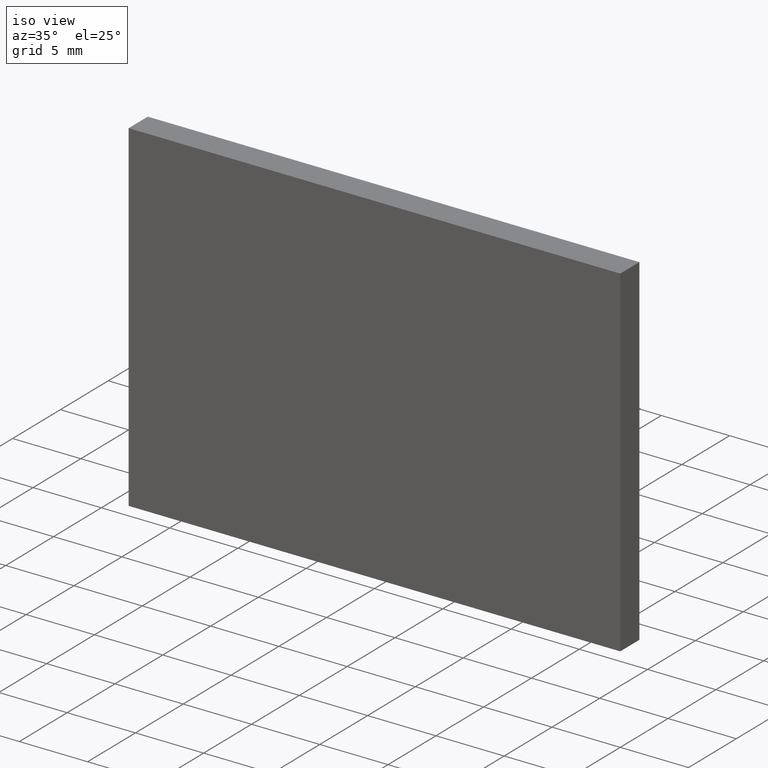
[diagram: clean part render]
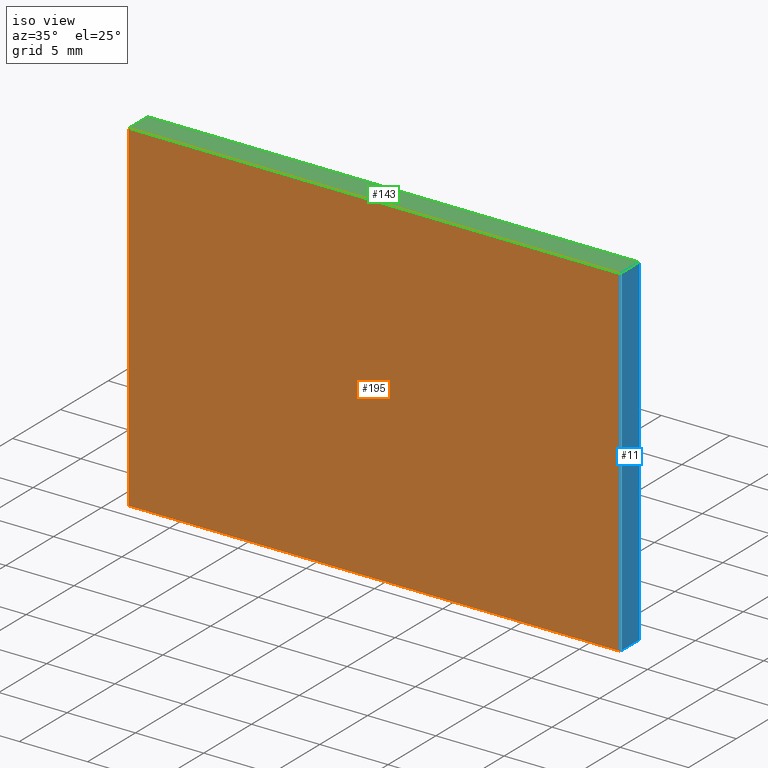
[diagram: same view with three faces highlighted in distinct colors, each labeled with its STEP entity id]
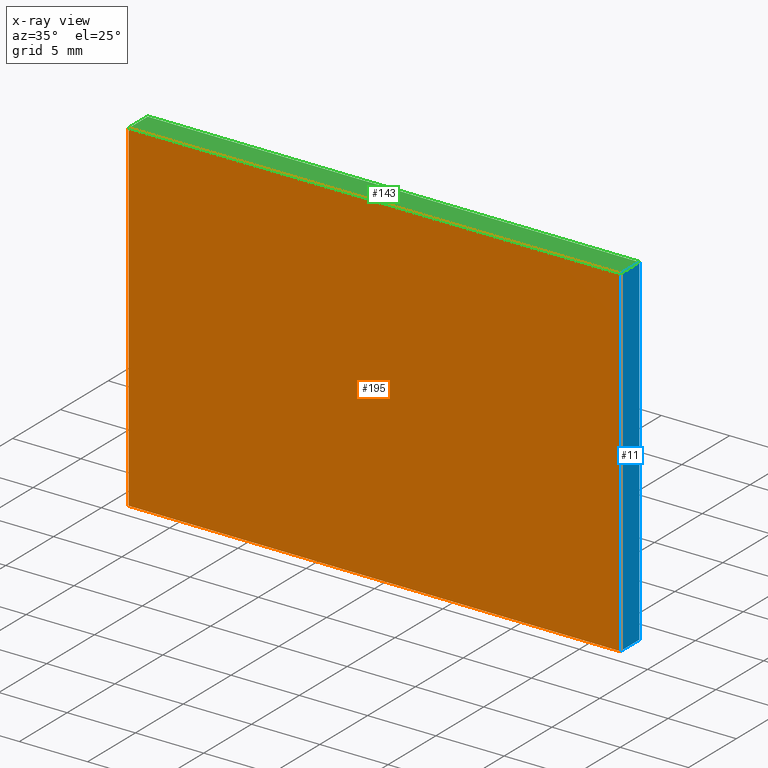
[diagram: x-ray of the same camera — body ghosted, the three highlighted faces saturated]
A machine part, iso view with three faces highlighted in distinct colors.
The next image is the same camera in x-ray (body ghosted, the three faces saturated) — at least one of them is partly hidden behind the body in this view.
Their STEP definitions:

[orange] entity #195 — the highlighted planar face has unit normal (0, 1, 0).
#1 = VECTOR ( 'NONE', #176, 1000.000000000000000 ) ;
#5 = AXIS2_PLACEMENT_3D ( 'NONE', #34, #13, #134 ) ;
#10 = CARTESIAN_POINT ( 'NONE',  ( 17.99999999999999600, 0.0000000000000000000, -12.49999999999999800 ) ) ;
#13 = DIRECTION ( 'NONE',  ( 0.0000000000000000000, 1.000000000000000000, 0.0000000000000000000 ) ) ;
#15 = FACE_OUTER_BOUND ( 'NONE', #17, .T. ) ;
#17 = EDGE_LOOP ( 'NONE', ( #97, #35, #65, #167 ) ) ;
#20 = VERTEX_POINT ( 'NONE', #130 ) ;
#32 = LINE ( 'NONE', #99, #1 ) ;
#34 = CARTESIAN_POINT ( 'NONE',  ( 0.0000000000000000000, 0.0000000000000000000, 0.0000000000000000000 ) ) ;
#35 = ORIENTED_EDGE ( 'NONE', *, *, #121, .F. ) ;
#39 = LINE ( 'NONE', #144, #78 ) ;
#48 = EDGE_CURVE ( 'NONE', #135, #74, #32, .T. ) ;
#49 = EDGE_CURVE ( 'NONE', #74, #20, #107, .T. ) ;
#55 = CARTESIAN_POINT ( 'NONE',  ( 18.00000000000000400, 0.0000000000000000000, 12.50000000000000200 ) ) ;
#56 = DIRECTION ( 'NONE',  ( -1.000000000000000000, -0.0000000000000000000, -0.0000000000000000000 ) ) ;
#58 = EDGE_CURVE ( 'NONE', #20, #60, #39, .T. ) ;
#60 = VERTEX_POINT ( 'NONE', #112 ) ;
#65 = ORIENTED_EDGE ( 'NONE', *, *, #58, .F. ) ;
#74 = VERTEX_POINT ( 'NONE', #10 ) ;
#78 = VECTOR ( 'NONE', #98, 1000.000000000000000 ) ;
#97 = ORIENTED_EDGE ( 'NONE', *, *, #48, .F. ) ;
#98 = DIRECTION ( 'NONE',  ( 0.0000000000000000000, 0.0000000000000000000, 1.000000000000000000 ) ) ;
#99 = CARTESIAN_POINT ( 'NONE',  ( 17.99999999999999600, 0.0000000000000000000, -12.49999999999999800 ) ) ;
#107 = LINE ( 'NONE', #196, #152 ) ;
#112 = CARTESIAN_POINT ( 'NONE',  ( -18.00000000000000400, 0.0000000000000000000, 12.50000000000000200 ) ) ;
#113 = PLANE ( 'NONE',  #5 ) ;
#120 = VECTOR ( 'NONE', #140, 1000.000000000000000 ) ;
#121 = EDGE_CURVE ( 'NONE', #60, #135, #163, .T. ) ;
#130 = CARTESIAN_POINT ( 'NONE',  ( -18.00000000000000400, 0.0000000000000000000, -12.49999999999999800 ) ) ;
#134 = DIRECTION ( 'NONE',  ( 0.0000000000000000000, -0.0000000000000000000, 1.000000000000000000 ) ) ;
#135 = VERTEX_POINT ( 'NONE', #55 ) ;
#140 = DIRECTION ( 'NONE',  ( 1.000000000000000000, 0.0000000000000000000, 0.0000000000000000000 ) ) ;
#144 = CARTESIAN_POINT ( 'NONE',  ( -18.00000000000000400, 0.0000000000000000000, -12.49999999999999800 ) ) ;
#152 = VECTOR ( 'NONE', #56, 1000.000000000000000 ) ;
#155 = CARTESIAN_POINT ( 'NONE',  ( -18.00000000000000400, 0.0000000000000000000, 12.50000000000000200 ) ) ;
#163 = LINE ( 'NONE', #155, #120 ) ;
#167 = ORIENTED_EDGE ( 'NONE', *, *, #49, .F. ) ;
#176 = DIRECTION ( 'NONE',  ( -2.775557561562891400E-016, -0.0000000000000000000, -1.000000000000000000 ) ) ;
#195 = ADVANCED_FACE ( 'NONE', ( #15 ), #113, .F. ) ;
#196 = CARTESIAN_POINT ( 'NONE',  ( -18.00000000000000400, 0.0000000000000000000, -12.49999999999999800 ) ) ;

[blue] entity #11 — the highlighted planar face has unit normal (-1, 0, 0).
#1 = VECTOR ( 'NONE', #176, 1000.000000000000000 ) ;
#7 = ORIENTED_EDGE ( 'NONE', *, *, #48, .T. ) ;
#8 = VECTOR ( 'NONE', #115, 1000.000000000000000 ) ;
#10 = CARTESIAN_POINT ( 'NONE',  ( 17.99999999999999600, 0.0000000000000000000, -12.49999999999999800 ) ) ;
#11 = ADVANCED_FACE ( 'NONE', ( #30 ), #172, .F. ) ;
#24 = VECTOR ( 'NONE', #193, 1000.000000000000000 ) ;
#25 = DIRECTION ( 'NONE',  ( 2.775557561562891400E-016, 0.0000000000000000000, 1.000000000000000000 ) ) ;
#30 = FACE_OUTER_BOUND ( 'NONE', #31, .T. ) ;
#31 = EDGE_LOOP ( 'NONE', ( #7, #93, #103, #180 ) ) ;
#32 = LINE ( 'NONE', #99, #1 ) ;
#36 = CARTESIAN_POINT ( 'NONE',  ( 18.00000000000000400, 2.000000000000000000, 12.50000000000000200 ) ) ;
#38 = CARTESIAN_POINT ( 'NONE',  ( 17.99999999999999600, 2.000000000000000000, -12.49999999999999800 ) ) ;
#40 = DIRECTION ( 'NONE',  ( -1.000000000000000000, 0.0000000000000000000, 2.775557561562891400E-016 ) ) ;
#48 = EDGE_CURVE ( 'NONE', #135, #74, #32, .T. ) ;
#53 = VERTEX_POINT ( 'NONE', #128 ) ;
#55 = CARTESIAN_POINT ( 'NONE',  ( 18.00000000000000400, 0.0000000000000000000, 12.50000000000000200 ) ) ;
#66 = EDGE_CURVE ( 'NONE', #104, #53, #77, .T. ) ;
#70 = DIRECTION ( 'NONE',  ( -2.775557561562891400E-016, -0.0000000000000000000, -1.000000000000000000 ) ) ;
#72 = AXIS2_PLACEMENT_3D ( 'NONE', #38, #40, #25 ) ;
#74 = VERTEX_POINT ( 'NONE', #10 ) ;
#77 = LINE ( 'NONE', #82, #114 ) ;
#81 = EDGE_CURVE ( 'NONE', #53, #74, #137, .T. ) ;
#82 = CARTESIAN_POINT ( 'NONE',  ( 17.99999999999999600, 2.000000000000000000, -12.49999999999999800 ) ) ;
#93 = ORIENTED_EDGE ( 'NONE', *, *, #81, .F. ) ;
#99 = CARTESIAN_POINT ( 'NONE',  ( 17.99999999999999600, 0.0000000000000000000, -12.49999999999999800 ) ) ;
#103 = ORIENTED_EDGE ( 'NONE', *, *, #66, .F. ) ;
#104 = VERTEX_POINT ( 'NONE', #36 ) ;
#114 = VECTOR ( 'NONE', #70, 1000.000000000000000 ) ;
#115 = DIRECTION ( 'NONE',  ( -0.0000000000000000000, -1.000000000000000000, -0.0000000000000000000 ) ) ;
#128 = CARTESIAN_POINT ( 'NONE',  ( 17.99999999999999600, 2.000000000000000000, -12.49999999999999800 ) ) ;
#135 = VERTEX_POINT ( 'NONE', #55 ) ;
#137 = LINE ( 'NONE', #142, #24 ) ;
#142 = CARTESIAN_POINT ( 'NONE',  ( 17.99999999999999600, 2.000000000000000000, -12.49999999999999800 ) ) ;
#146 = EDGE_CURVE ( 'NONE', #104, #135, #168, .T. ) ;
#168 = LINE ( 'NONE', #197, #8 ) ;
#172 = PLANE ( 'NONE',  #72 ) ;
#176 = DIRECTION ( 'NONE',  ( -2.775557561562891400E-016, -0.0000000000000000000, -1.000000000000000000 ) ) ;
#180 = ORIENTED_EDGE ( 'NONE', *, *, #146, .T. ) ;
#193 = DIRECTION ( 'NONE',  ( -0.0000000000000000000, -1.000000000000000000, -0.0000000000000000000 ) ) ;
#197 = CARTESIAN_POINT ( 'NONE',  ( 18.00000000000000400, 2.000000000000000000, 12.50000000000000200 ) ) ;

[green] entity #143 — the highlighted planar face has unit normal (0, 0, -1).
#2 = LINE ( 'NONE', #80, #194 ) ;
#8 = VECTOR ( 'NONE', #115, 1000.000000000000000 ) ;
#12 = CARTESIAN_POINT ( 'NONE',  ( -18.00000000000000400, 2.000000000000000000, 12.50000000000000200 ) ) ;
#36 = CARTESIAN_POINT ( 'NONE',  ( 18.00000000000000400, 2.000000000000000000, 12.50000000000000200 ) ) ;
#43 = EDGE_CURVE ( 'NONE', #68, #104, #161, .T. ) ;
#50 = DIRECTION ( 'NONE',  ( -1.000000000000000000, 0.0000000000000000000, -0.0000000000000000000 ) ) ;
#51 = FACE_OUTER_BOUND ( 'NONE', #174, .T. ) ;
#52 = DIRECTION ( 'NONE',  ( -0.0000000000000000000, -1.000000000000000000, -0.0000000000000000000 ) ) ;
#55 = CARTESIAN_POINT ( 'NONE',  ( 18.00000000000000400, 0.0000000000000000000, 12.50000000000000200 ) ) ;
#60 = VERTEX_POINT ( 'NONE', #112 ) ;
#68 = VERTEX_POINT ( 'NONE', #175 ) ;
#80 = CARTESIAN_POINT ( 'NONE',  ( -18.00000000000000400, 2.000000000000000000, 12.50000000000000200 ) ) ;
#84 = DIRECTION ( 'NONE',  ( 1.000000000000000000, 0.0000000000000000000, 0.0000000000000000000 ) ) ;
#91 = ORIENTED_EDGE ( 'NONE', *, *, #43, .F. ) ;
#104 = VERTEX_POINT ( 'NONE', #36 ) ;
#111 = EDGE_CURVE ( 'NONE', #68, #60, #2, .T. ) ;
#112 = CARTESIAN_POINT ( 'NONE',  ( -18.00000000000000400, 0.0000000000000000000, 12.50000000000000200 ) ) ;
#115 = DIRECTION ( 'NONE',  ( -0.0000000000000000000, -1.000000000000000000, -0.0000000000000000000 ) ) ;
#120 = VECTOR ( 'NONE', #140, 1000.000000000000000 ) ;
#121 = EDGE_CURVE ( 'NONE', #60, #135, #163, .T. ) ;
#132 = ORIENTED_EDGE ( 'NONE', *, *, #146, .F. ) ;
#135 = VERTEX_POINT ( 'NONE', #55 ) ;
#140 = DIRECTION ( 'NONE',  ( 1.000000000000000000, 0.0000000000000000000, 0.0000000000000000000 ) ) ;
#143 = ADVANCED_FACE ( 'NONE', ( #51 ), #190, .F. ) ;
#146 = EDGE_CURVE ( 'NONE', #104, #135, #168, .T. ) ;
#148 = VECTOR ( 'NONE', #84, 1000.000000000000000 ) ;
#153 = DIRECTION ( 'NONE',  ( 0.0000000000000000000, 0.0000000000000000000, -1.000000000000000000 ) ) ;
#155 = CARTESIAN_POINT ( 'NONE',  ( -18.00000000000000400, 0.0000000000000000000, 12.50000000000000200 ) ) ;
#161 = LINE ( 'NONE', #12, #148 ) ;
#163 = LINE ( 'NONE', #155, #120 ) ;
#168 = LINE ( 'NONE', #197, #8 ) ;
#169 = ORIENTED_EDGE ( 'NONE', *, *, #111, .T. ) ;
#171 = CARTESIAN_POINT ( 'NONE',  ( -18.00000000000000400, 2.000000000000000000, 12.50000000000000200 ) ) ;
#174 = EDGE_LOOP ( 'NONE', ( #179, #132, #91, #169 ) ) ;
#175 = CARTESIAN_POINT ( 'NONE',  ( -18.00000000000000400, 2.000000000000000000, 12.50000000000000200 ) ) ;
#179 = ORIENTED_EDGE ( 'NONE', *, *, #121, .T. ) ;
#184 = AXIS2_PLACEMENT_3D ( 'NONE', #171, #153, #50 ) ;
#190 = PLANE ( 'NONE',  #184 ) ;
#194 = VECTOR ( 'NONE', #52, 1000.000000000000000 ) ;
#197 = CARTESIAN_POINT ( 'NONE',  ( 18.00000000000000400, 2.000000000000000000, 12.50000000000000200 ) ) ;